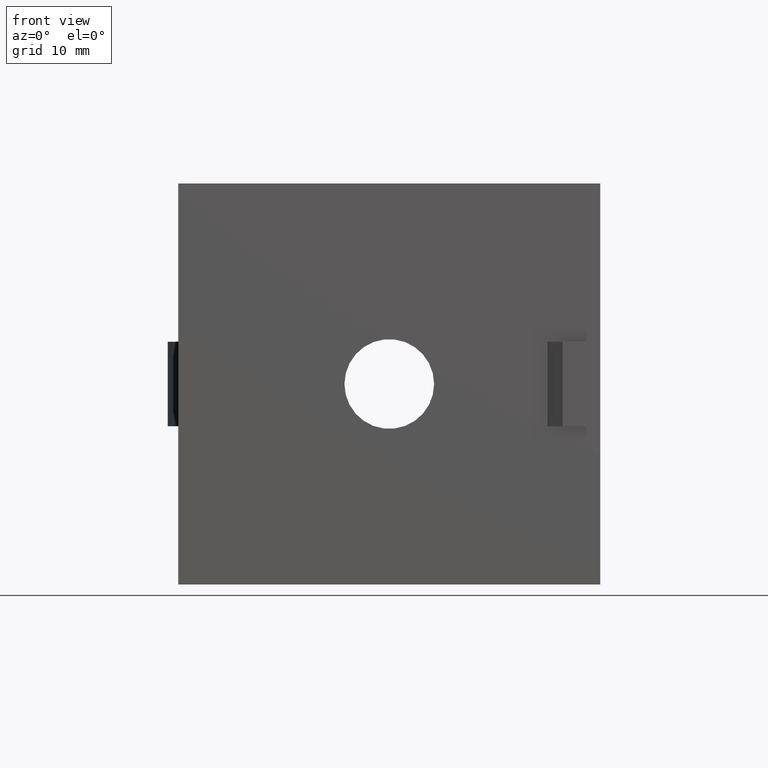
[diagram: clean part render]
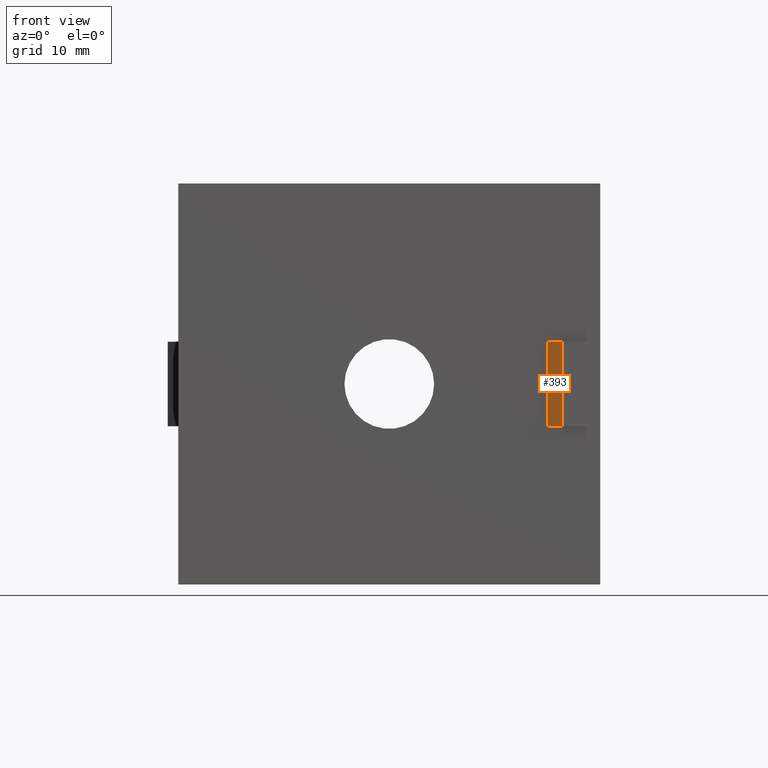
[diagram: same view with one face highlighted and labeled with its STEP entity id]
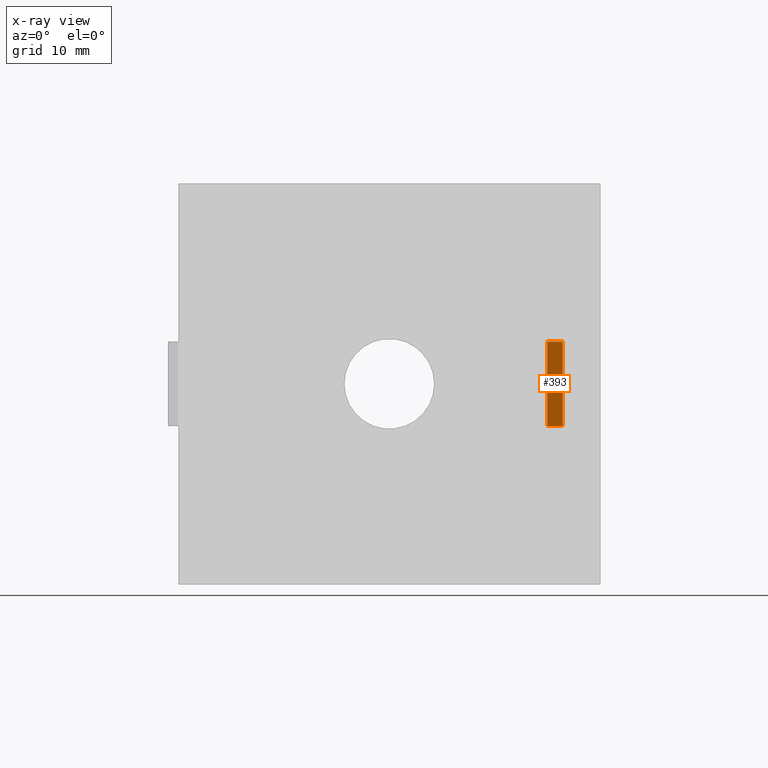
[diagram: x-ray of the same camera — body ghosted, the highlighted face saturated]
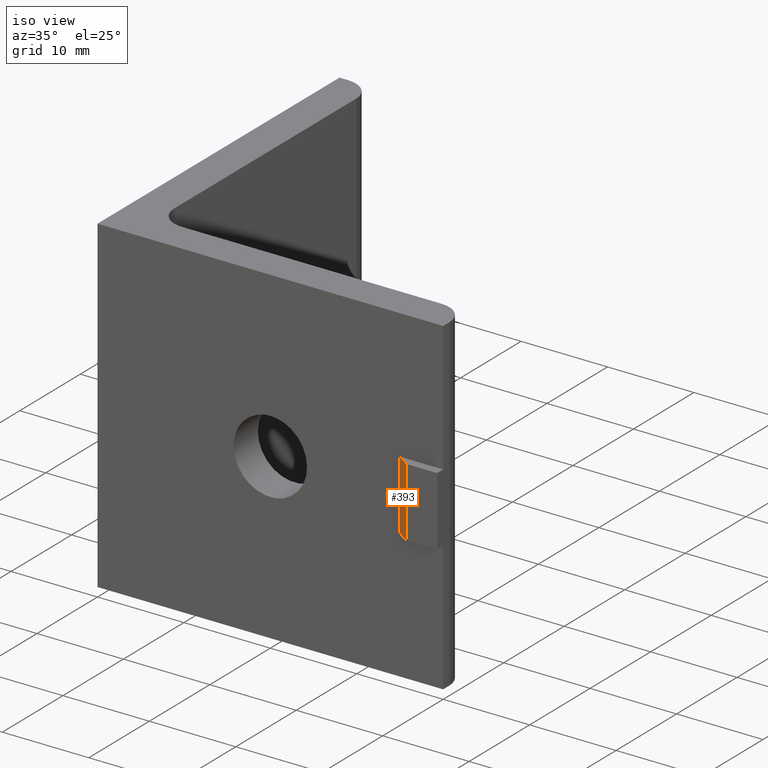
[diagram: same view with one face highlighted and labeled with its STEP entity id]
A machine part, front view. The second image highlights one B-rep face of the part: STEP entity #393.
The next image is the same camera in x-ray: the body ghosted, the highlighted face saturated — about 0% of this face is hidden behind the body in this view.
A second angle (iso view) of the same face is appended — the face is thin or edge-on in the first view.
In plain terms, the highlighted planar face has unit normal (-0.5722, -0.8201, 0).
Its self-contained STEP definition (entity closure, byte-faithful):
#36=FACE_OUTER_BOUND('',#57,.T.);
#57=EDGE_LOOP('',(#267,#268,#269,#270));
#84=LINE('',#560,#129);
#85=LINE('',#562,#130);
#86=LINE('',#564,#131);
#87=LINE('',#565,#132);
#129=VECTOR('',#451,8.);
#130=VECTOR('',#452,1.74755421724879);
#131=VECTOR('',#453,8.);
#132=VECTOR('',#454,1.74755421724879);
#174=VERTEX_POINT('',#558);
#175=VERTEX_POINT('',#559);
#176=VERTEX_POINT('',#561);
#177=VERTEX_POINT('',#563);
#212=EDGE_CURVE('',#174,#175,#84,.T.);
#213=EDGE_CURVE('',#174,#176,#85,.T.);
#214=EDGE_CURVE('',#176,#177,#86,.T.);
#215=EDGE_CURVE('',#175,#177,#87,.T.);
#267=ORIENTED_EDGE('',*,*,#212,.F.);
#268=ORIENTED_EDGE('',*,*,#213,.T.);
#269=ORIENTED_EDGE('',*,*,#214,.T.);
#270=ORIENTED_EDGE('',*,*,#215,.F.);
#377=PLANE('',#416);
#393=ADVANCED_FACE('',(#36),#377,.T.);
#416=AXIS2_PLACEMENT_3D('',#557,#449,#450);
#449=DIRECTION('center_axis',(-0.572228185005018,-0.820094448393515,0.));
#450=DIRECTION('ref_axis',(0.,0.,1.));
#451=DIRECTION('',(0.,0.,1.));
#452=DIRECTION('',(0.820094448393515,-0.572228185005017,0.));
#453=DIRECTION('',(0.,0.,1.));
#454=DIRECTION('',(0.820094448393515,-0.572228185005017,0.));
#557=CARTESIAN_POINT('Origin',(34.999978879863,0.,-19.));
#558=CARTESIAN_POINT('',(34.999978879863,0.,-4.));
#559=CARTESIAN_POINT('',(34.999978879863,0.,4.));
#560=CARTESIAN_POINT('',(34.999978879863,0.,-4.));
#561=CARTESIAN_POINT('',(36.4331383916954,-0.999999777934136,-4.));
#562=CARTESIAN_POINT('',(34.999978879863,0.,-4.));
#563=CARTESIAN_POINT('',(36.4331383916954,-0.999999777934136,4.));
#564=CARTESIAN_POINT('',(36.4331383916954,-0.999999777934136,-4.));
#565=CARTESIAN_POINT('',(34.999978879863,0.,4.));